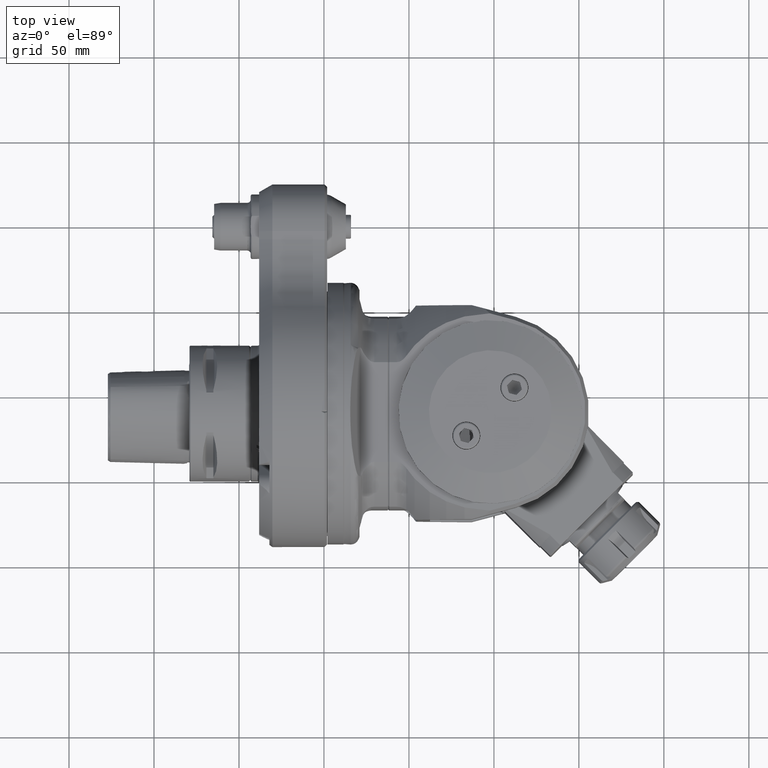
[diagram: clean part render]
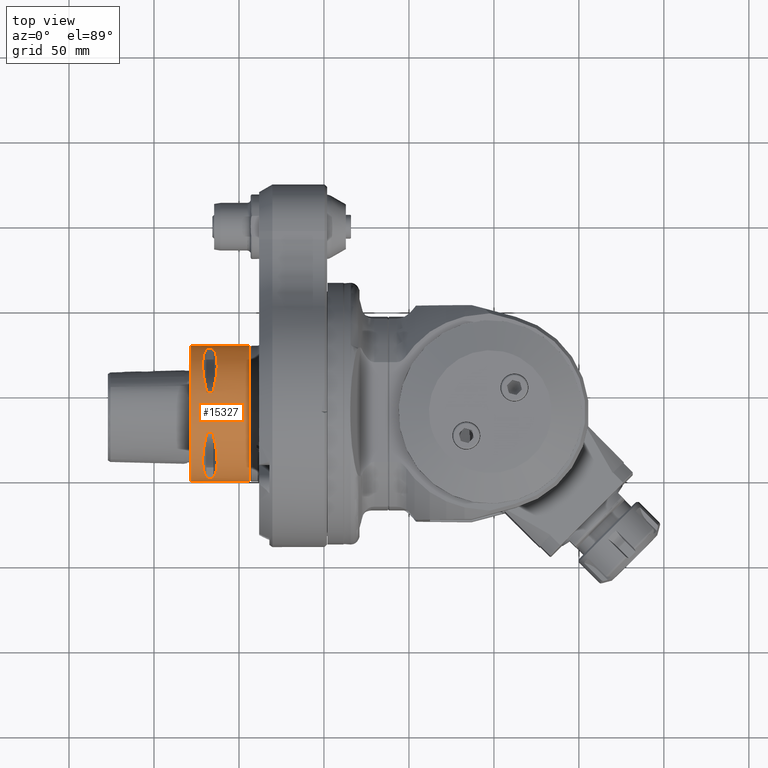
[diagram: same view with one face highlighted and labeled with its STEP entity id]
A machine part, top view. The second image highlights one B-rep face of the part: STEP entity #15327.
In plain terms, the highlighted cylindrical surface (bore or boss wall) has radius 40 mm, axis along (-1, 0, 0).
Its self-contained STEP definition (entity closure, byte-faithful):
#28=ELLIPSE('',#16628,46.1880215351714,40.);
#29=ELLIPSE('',#16631,46.1880215351714,40.);
#30=ELLIPSE('',#16633,46.1880215351714,40.);
#31=ELLIPSE('',#16636,46.1880215351714,40.);
#32=ELLIPSE('',#16640,46.1880215351714,40.);
#33=ELLIPSE('',#16643,46.1880215351714,40.);
#34=ELLIPSE('',#16646,46.1880215351714,40.);
#35=ELLIPSE('',#16649,46.1880215351714,40.);
#599=FACE_BOUND('',#2683,.T.);
#600=FACE_BOUND('',#2684,.T.);
#601=FACE_BOUND('',#2685,.T.);
#602=FACE_BOUND('',#2686,.T.);
#603=FACE_BOUND('',#2687,.T.);
#769=B_SPLINE_CURVE_WITH_KNOTS('',3,(#37405,#37406,#37407,#37408,#37409,
#37410,#37411,#37412,#37413,#37414,#37415,#37416,#37417,#37418,#37419,#37420,
#37421,#37422,#37423),.UNSPECIFIED.,.F.,.F.,(4,2,2,2,3,2,2,2,4),(-0.301403259154972,
-0.226052452324966,-0.15070164549496,-0.0753508227474801,0.,0.0753508227474802,
0.15070164549496,0.226052452324966,0.301403259154972),.UNSPECIFIED.);
#770=B_SPLINE_CURVE_WITH_KNOTS('',3,(#37424,#37425,#37426,#37427,#37428,
#37429,#37430,#37431,#37432,#37433,#37434,#37435,#37436,#37437,#37438,#37439,
#37440,#37441),.UNSPECIFIED.,.F.,.F.,(4,2,2,2,2,2,2,2,4),(0.301403259154972,
0.376754065984978,0.452104872814984,0.527455695562464,0.602806518309944,
0.678157341057424,0.753508163804904,0.82885897063491,0.904209777464916),
 .UNSPECIFIED.);
#1724=FACE_OUTER_BOUND('',#2682,.T.);
#2682=EDGE_LOOP('',(#11856,#11857,#11858,#11859,#11860));
#2683=EDGE_LOOP('',(#11861,#11862));
#2684=EDGE_LOOP('',(#11863,#11864,#11865,#11866,#11867,#11868,#11869,#11870));
#2685=EDGE_LOOP('',(#11871,#11872,#11873,#11874,#11875,#11876,#11877,#11878));
#2686=EDGE_LOOP('',(#11879,#11880,#11881,#11882,#11883,#11884,#11885,#11886));
#2687=EDGE_LOOP('',(#11887,#11888,#11889,#11890,#11891,#11892,#11893,#11894));
#3802=LINE('',#37402,#4845);
#3803=LINE('',#37444,#4846);
#3804=LINE('',#37452,#4847);
#3805=LINE('',#37464,#4848);
#3806=LINE('',#37472,#4849);
#3807=LINE('',#37482,#4850);
#3808=LINE('',#37489,#4851);
#3809=LINE('',#37492,#4852);
#3810=LINE('',#37500,#4853);
#4845=VECTOR('',#19429,40.);
#4846=VECTOR('',#19430,4.1);
#4847=VECTOR('',#19437,4.1);
#4848=VECTOR('',#19448,4.1);
#4849=VECTOR('',#19455,4.1);
#4850=VECTOR('',#19464,4.1);
#4851=VECTOR('',#19471,4.1);
#4852=VECTOR('',#19472,4.1);
#4853=VECTOR('',#19479,4.1);
#5773=CIRCLE('',#16623,40.);
#5774=CIRCLE('',#16625,40.);
#5775=CIRCLE('',#16626,40.);
#5776=CIRCLE('',#16627,40.);
#5777=CIRCLE('',#16629,40.);
#5778=CIRCLE('',#16630,40.);
#5779=CIRCLE('',#16632,40.);
#5780=CIRCLE('',#16634,40.);
#5781=CIRCLE('',#16635,40.);
#5782=CIRCLE('',#16637,40.);
#5783=CIRCLE('',#16638,40.);
#5784=CIRCLE('',#16639,40.);
#5785=CIRCLE('',#16641,40.);
#5786=CIRCLE('',#16642,40.);
#5787=CIRCLE('',#16644,40.);
#5788=CIRCLE('',#16645,40.);
#5789=CIRCLE('',#16647,40.);
#5790=CIRCLE('',#16648,40.);
#5791=CIRCLE('',#16650,40.);
#6789=VERTEX_POINT('',#37394);
#6790=VERTEX_POINT('',#37398);
#6791=VERTEX_POINT('',#37399);
#6792=VERTEX_POINT('',#37403);
#6793=VERTEX_POINT('',#37404);
#6794=VERTEX_POINT('',#37442);
#6795=VERTEX_POINT('',#37443);
#6796=VERTEX_POINT('',#37445);
#6797=VERTEX_POINT('',#37447);
#6798=VERTEX_POINT('',#37449);
#6799=VERTEX_POINT('',#37451);
#6800=VERTEX_POINT('',#37453);
#6801=VERTEX_POINT('',#37455);
#6802=VERTEX_POINT('',#37458);
#6803=VERTEX_POINT('',#37459);
#6804=VERTEX_POINT('',#37461);
#6805=VERTEX_POINT('',#37463);
#6806=VERTEX_POINT('',#37465);
#6807=VERTEX_POINT('',#37467);
#6808=VERTEX_POINT('',#37469);
#6809=VERTEX_POINT('',#37471);
#6810=VERTEX_POINT('',#37474);
#6811=VERTEX_POINT('',#37475);
#6812=VERTEX_POINT('',#37477);
#6813=VERTEX_POINT('',#37479);
#6814=VERTEX_POINT('',#37481);
#6815=VERTEX_POINT('',#37483);
#6816=VERTEX_POINT('',#37485);
#6817=VERTEX_POINT('',#37487);
#6818=VERTEX_POINT('',#37490);
#6819=VERTEX_POINT('',#37491);
#6820=VERTEX_POINT('',#37493);
#6821=VERTEX_POINT('',#37495);
#6822=VERTEX_POINT('',#37497);
#6823=VERTEX_POINT('',#37499);
#6824=VERTEX_POINT('',#37501);
#6825=VERTEX_POINT('',#37503);
#8635=EDGE_CURVE('',#6789,#6789,#5773,.T.);
#8637=EDGE_CURVE('',#6790,#6791,#5774,.T.);
#8638=EDGE_CURVE('',#6791,#6790,#5775,.T.);
#8639=EDGE_CURVE('',#6791,#6789,#3802,.T.);
#8640=EDGE_CURVE('',#6792,#6793,#769,.T.);
#8641=EDGE_CURVE('',#6793,#6792,#770,.T.);
#8642=EDGE_CURVE('',#6794,#6795,#3803,.T.);
#8643=EDGE_CURVE('',#6796,#6795,#5776,.T.);
#8644=EDGE_CURVE('',#6797,#6796,#28,.T.);
#8645=EDGE_CURVE('',#6798,#6797,#5777,.T.);
#8646=EDGE_CURVE('',#6798,#6799,#3804,.T.);
#8647=EDGE_CURVE('',#6800,#6799,#5778,.T.);
#8648=EDGE_CURVE('',#6801,#6800,#29,.T.);
#8649=EDGE_CURVE('',#6794,#6801,#5779,.T.);
#8650=EDGE_CURVE('',#6802,#6803,#30,.T.);
#8651=EDGE_CURVE('',#6804,#6802,#5780,.T.);
#8652=EDGE_CURVE('',#6804,#6805,#3805,.T.);
#8653=EDGE_CURVE('',#6806,#6805,#5781,.T.);
#8654=EDGE_CURVE('',#6807,#6806,#31,.T.);
#8655=EDGE_CURVE('',#6808,#6807,#5782,.T.);
#8656=EDGE_CURVE('',#6808,#6809,#3806,.T.);
#8657=EDGE_CURVE('',#6803,#6809,#5783,.T.);
#8658=EDGE_CURVE('',#6810,#6811,#5784,.T.);
#8659=EDGE_CURVE('',#6812,#6810,#32,.T.);
#8660=EDGE_CURVE('',#6813,#6812,#5785,.T.);
#8661=EDGE_CURVE('',#6813,#6814,#3807,.T.);
#8662=EDGE_CURVE('',#6815,#6814,#5786,.T.);
#8663=EDGE_CURVE('',#6816,#6815,#33,.T.);
#8664=EDGE_CURVE('',#6817,#6816,#5787,.T.);
#8665=EDGE_CURVE('',#6817,#6811,#3808,.T.);
#8666=EDGE_CURVE('',#6818,#6819,#3809,.T.);
#8667=EDGE_CURVE('',#6820,#6819,#5788,.T.);
#8668=EDGE_CURVE('',#6821,#6820,#34,.T.);
#8669=EDGE_CURVE('',#6822,#6821,#5789,.T.);
#8670=EDGE_CURVE('',#6822,#6823,#3810,.T.);
#8671=EDGE_CURVE('',#6824,#6823,#5790,.T.);
#8672=EDGE_CURVE('',#6825,#6824,#35,.T.);
#8673=EDGE_CURVE('',#6818,#6825,#5791,.T.);
#11856=ORIENTED_EDGE('',*,*,#8637,.F.);
#11857=ORIENTED_EDGE('',*,*,#8638,.F.);
#11858=ORIENTED_EDGE('',*,*,#8639,.T.);
#11859=ORIENTED_EDGE('',*,*,#8635,.F.);
#11860=ORIENTED_EDGE('',*,*,#8639,.F.);
#11861=ORIENTED_EDGE('',*,*,#8640,.T.);
#11862=ORIENTED_EDGE('',*,*,#8641,.T.);
#11863=ORIENTED_EDGE('',*,*,#8642,.T.);
#11864=ORIENTED_EDGE('',*,*,#8643,.F.);
#11865=ORIENTED_EDGE('',*,*,#8644,.F.);
#11866=ORIENTED_EDGE('',*,*,#8645,.F.);
#11867=ORIENTED_EDGE('',*,*,#8646,.T.);
#11868=ORIENTED_EDGE('',*,*,#8647,.F.);
#11869=ORIENTED_EDGE('',*,*,#8648,.F.);
#11870=ORIENTED_EDGE('',*,*,#8649,.F.);
#11871=ORIENTED_EDGE('',*,*,#8650,.F.);
#11872=ORIENTED_EDGE('',*,*,#8651,.F.);
#11873=ORIENTED_EDGE('',*,*,#8652,.T.);
#11874=ORIENTED_EDGE('',*,*,#8653,.F.);
#11875=ORIENTED_EDGE('',*,*,#8654,.F.);
#11876=ORIENTED_EDGE('',*,*,#8655,.F.);
#11877=ORIENTED_EDGE('',*,*,#8656,.T.);
#11878=ORIENTED_EDGE('',*,*,#8657,.F.);
#11879=ORIENTED_EDGE('',*,*,#8658,.F.);
#11880=ORIENTED_EDGE('',*,*,#8659,.F.);
#11881=ORIENTED_EDGE('',*,*,#8660,.F.);
#11882=ORIENTED_EDGE('',*,*,#8661,.T.);
#11883=ORIENTED_EDGE('',*,*,#8662,.F.);
#11884=ORIENTED_EDGE('',*,*,#8663,.F.);
#11885=ORIENTED_EDGE('',*,*,#8664,.F.);
#11886=ORIENTED_EDGE('',*,*,#8665,.T.);
#11887=ORIENTED_EDGE('',*,*,#8666,.T.);
#11888=ORIENTED_EDGE('',*,*,#8667,.F.);
#11889=ORIENTED_EDGE('',*,*,#8668,.F.);
#11890=ORIENTED_EDGE('',*,*,#8669,.F.);
#11891=ORIENTED_EDGE('',*,*,#8670,.T.);
#11892=ORIENTED_EDGE('',*,*,#8671,.F.);
#11893=ORIENTED_EDGE('',*,*,#8672,.F.);
#11894=ORIENTED_EDGE('',*,*,#8673,.F.);
#14871=CYLINDRICAL_SURFACE('',#16624,40.);
#15327=ADVANCED_FACE('',(#1724,#599,#600,#601,#602,#603),#14871,.T.);
#16623=AXIS2_PLACEMENT_3D('',#37395,#19420,#19421);
#16624=AXIS2_PLACEMENT_3D('',#37397,#19423,#19424);
#16625=AXIS2_PLACEMENT_3D('',#37400,#19425,#19426);
#16626=AXIS2_PLACEMENT_3D('',#37401,#19427,#19428);
#16627=AXIS2_PLACEMENT_3D('',#37446,#19431,#19432);
#16628=AXIS2_PLACEMENT_3D('',#37448,#19433,#19434);
#16629=AXIS2_PLACEMENT_3D('',#37450,#19435,#19436);
#16630=AXIS2_PLACEMENT_3D('',#37454,#19438,#19439);
#16631=AXIS2_PLACEMENT_3D('',#37456,#19440,#19441);
#16632=AXIS2_PLACEMENT_3D('',#37457,#19442,#19443);
#16633=AXIS2_PLACEMENT_3D('',#37460,#19444,#19445);
#16634=AXIS2_PLACEMENT_3D('',#37462,#19446,#19447);
#16635=AXIS2_PLACEMENT_3D('',#37466,#19449,#19450);
#16636=AXIS2_PLACEMENT_3D('',#37468,#19451,#19452);
#16637=AXIS2_PLACEMENT_3D('',#37470,#19453,#19454);
#16638=AXIS2_PLACEMENT_3D('',#37473,#19456,#19457);
#16639=AXIS2_PLACEMENT_3D('',#37476,#19458,#19459);
#16640=AXIS2_PLACEMENT_3D('',#37478,#19460,#19461);
#16641=AXIS2_PLACEMENT_3D('',#37480,#19462,#19463);
#16642=AXIS2_PLACEMENT_3D('',#37484,#19465,#19466);
#16643=AXIS2_PLACEMENT_3D('',#37486,#19467,#19468);
#16644=AXIS2_PLACEMENT_3D('',#37488,#19469,#19470);
#16645=AXIS2_PLACEMENT_3D('',#37494,#19473,#19474);
#16646=AXIS2_PLACEMENT_3D('',#37496,#19475,#19476);
#16647=AXIS2_PLACEMENT_3D('',#37498,#19477,#19478);
#16648=AXIS2_PLACEMENT_3D('',#37502,#19480,#19481);
#16649=AXIS2_PLACEMENT_3D('',#37504,#19482,#19483);
#16650=AXIS2_PLACEMENT_3D('',#37505,#19484,#19485);
#19420=DIRECTION('center_axis',(1.,0.,0.));
#19421=DIRECTION('ref_axis',(0.,1.,0.));
#19423=DIRECTION('center_axis',(-1.,0.,0.));
#19424=DIRECTION('ref_axis',(0.,1.,0.));
#19425=DIRECTION('center_axis',(-1.,0.,0.));
#19426=DIRECTION('ref_axis',(0.,1.,0.));
#19427=DIRECTION('center_axis',(-1.,0.,0.));
#19428=DIRECTION('ref_axis',(0.,1.,0.));
#19429=DIRECTION('',(1.,0.,0.));
#19430=DIRECTION('',(1.,0.,0.));
#19431=DIRECTION('center_axis',(-1.,0.,0.));
#19432=DIRECTION('ref_axis',(0.,-0.330929327763913,0.943655540981837));
#19433=DIRECTION('center_axis',(-0.866025403784413,-0.353553390593305,0.353553390593305));
#19434=DIRECTION('ref_axis',(-0.500000000000045,0.612372435695776,-0.612372435695776));
#19435=DIRECTION('center_axis',(-1.,0.,0.));
#19436=DIRECTION('ref_axis',(0.,-0.955802835676984,0.294008400070195));
#19437=DIRECTION('',(-1.,0.,0.));
#19438=DIRECTION('center_axis',(1.,0.,0.));
#19439=DIRECTION('ref_axis',(0.,-0.943655540981837,0.330929327763913));
#19440=DIRECTION('center_axis',(0.866025403784413,-0.353553390593305,0.353553390593305));
#19441=DIRECTION('ref_axis',(0.500000000000045,0.612372435695776,-0.612372435695776));
#19442=DIRECTION('center_axis',(1.,0.,0.));
#19443=DIRECTION('ref_axis',(0.,-0.294008400070195,0.955802835676984));
#19444=DIRECTION('center_axis',(-0.866025403784413,0.353553390593305,0.353553390593305));
#19445=DIRECTION('ref_axis',(0.500000000000045,0.612372435695776,0.612372435695776));
#19446=DIRECTION('center_axis',(-1.,0.,0.));
#19447=DIRECTION('ref_axis',(0.,0.294008400070195,0.955802835676984));
#19448=DIRECTION('',(-1.,0.,0.));
#19449=DIRECTION('center_axis',(1.,0.,0.));
#19450=DIRECTION('ref_axis',(0.,0.330929327763913,0.943655540981837));
#19451=DIRECTION('center_axis',(0.866025403784413,0.353553390593305,0.353553390593305));
#19452=DIRECTION('ref_axis',(-0.500000000000045,0.612372435695776,0.612372435695776));
#19453=DIRECTION('center_axis',(1.,0.,0.));
#19454=DIRECTION('ref_axis',(0.,0.955802835676984,0.294008400070195));
#19455=DIRECTION('',(1.,0.,0.));
#19456=DIRECTION('center_axis',(-1.,0.,0.));
#19457=DIRECTION('ref_axis',(0.,0.943655540981837,0.330929327763913));
#19458=DIRECTION('center_axis',(-1.,0.,0.));
#19459=DIRECTION('ref_axis',(0.,0.330929327763913,-0.943655540981837));
#19460=DIRECTION('center_axis',(-0.866025403784413,0.353553390593305,-0.353553390593305));
#19461=DIRECTION('ref_axis',(0.500000000000045,0.612372435695776,-0.612372435695776));
#19462=DIRECTION('center_axis',(-1.,0.,0.));
#19463=DIRECTION('ref_axis',(0.,0.955802835676984,-0.294008400070195));
#19464=DIRECTION('',(-1.,0.,0.));
#19465=DIRECTION('center_axis',(1.,0.,0.));
#19466=DIRECTION('ref_axis',(0.,0.943655540981837,-0.330929327763913));
#19467=DIRECTION('center_axis',(0.866025403784413,0.353553390593305,-0.353553390593305));
#19468=DIRECTION('ref_axis',(-0.500000000000045,0.612372435695776,-0.612372435695776));
#19469=DIRECTION('center_axis',(1.,0.,0.));
#19470=DIRECTION('ref_axis',(0.,0.294008400070195,-0.955802835676984));
#19471=DIRECTION('',(1.,0.,0.));
#19472=DIRECTION('',(1.,0.,0.));
#19473=DIRECTION('center_axis',(-1.,0.,0.));
#19474=DIRECTION('ref_axis',(0.,-0.943655540981837,-0.330929327763913));
#19475=DIRECTION('center_axis',(-0.866025403784413,-0.353553390593305,-0.353553390593305));
#19476=DIRECTION('ref_axis',(-0.500000000000045,0.612372435695776,0.612372435695776));
#19477=DIRECTION('center_axis',(-1.,0.,0.));
#19478=DIRECTION('ref_axis',(0.,-0.294008400070195,-0.955802835676984));
#19479=DIRECTION('',(-1.,0.,0.));
#19480=DIRECTION('center_axis',(1.,0.,0.));
#19481=DIRECTION('ref_axis',(0.,-0.330929327763913,-0.943655540981837));
#19482=DIRECTION('center_axis',(0.866025403784413,-0.353553390593305,-0.353553390593305));
#19483=DIRECTION('ref_axis',(0.500000000000045,0.612372435695776,0.612372435695776));
#19484=DIRECTION('center_axis',(1.,0.,0.));
#19485=DIRECTION('ref_axis',(0.,-0.955802835676984,-0.294008400070195));
#37394=CARTESIAN_POINT('',(31.,-40.,0.));
#37395=CARTESIAN_POINT('Origin',(31.,0.,0.));
#37397=CARTESIAN_POINT('Origin',(-4.000000000003,0.,0.));
#37398=CARTESIAN_POINT('',(-3.500000000003,40.,0.));
#37399=CARTESIAN_POINT('',(-3.500000000003,-40.,4.89858719658941E-15));
#37400=CARTESIAN_POINT('Origin',(-3.500000000003,0.,0.));
#37401=CARTESIAN_POINT('Origin',(-3.500000000003,0.,0.));
#37402=CARTESIAN_POINT('',(-4.000000000003,-40.,4.89858719658941E-15));
#37403=CARTESIAN_POINT('',(5.999999999997,40.,0.));
#37404=CARTESIAN_POINT('',(9.999999999997,40.,-2.44929359829471E-16));
#37405=CARTESIAN_POINT('Ctrl Pts',(5.999999999997,40.,4.85722573273506E-16));
#37406=CARTESIAN_POINT('Ctrl Pts',(5.999999999997,40.,-0.251169356100019));
#37407=CARTESIAN_POINT('Ctrl Pts',(6.05020482348075,39.9973912547077,-0.519051817553323));
#37408=CARTESIAN_POINT('Ctrl Pts',(6.25432519584563,39.9879605190891,-1.01179814961669));
#37409=CARTESIAN_POINT('Ctrl Pts',(6.40823842720574,39.9812733796968,-1.23666555195493));
#37410=CARTESIAN_POINT('Ctrl Pts',(6.76333448554818,39.9687109842031,-1.59176161029737));
#37411=CARTESIAN_POINT('Ctrl Pts',(6.98820187076061,39.9620201940857,-1.74567481365527));
#37412=CARTESIAN_POINT('Ctrl Pts',(7.48094814885337,39.9525811104471,-1.9497951615401));
#37413=CARTESIAN_POINT('Ctrl Pts',(7.74883059083873,39.9499687108764,-2.));
#37414=CARTESIAN_POINT('Ctrl Pts',(7.999999999997,39.9499687108764,-2.));
#37415=CARTESIAN_POINT('Ctrl Pts',(8.25116940915527,39.9499687108764,-2.));
#37416=CARTESIAN_POINT('Ctrl Pts',(8.51905185114063,39.9525811104471,-1.9497951615401));
#37417=CARTESIAN_POINT('Ctrl Pts',(9.01179812923339,39.9620201940857,-1.74567481365527));
#37418=CARTESIAN_POINT('Ctrl Pts',(9.23666551444582,39.9687109842031,-1.59176161029737));
#37419=CARTESIAN_POINT('Ctrl Pts',(9.59176157278826,39.9812733796968,-1.23666555195493));
#37420=CARTESIAN_POINT('Ctrl Pts',(9.74567480414837,39.9879605190891,-1.01179814961669));
#37421=CARTESIAN_POINT('Ctrl Pts',(9.94979517651325,39.9973912547077,-0.519051817553323));
#37422=CARTESIAN_POINT('Ctrl Pts',(9.999999999997,40.,-0.25116935610002));
#37423=CARTESIAN_POINT('Ctrl Pts',(9.999999999997,40.,-2.08166817117217E-16));
#37424=CARTESIAN_POINT('Ctrl Pts',(9.999999999997,40.,-2.77555756156289E-16));
#37425=CARTESIAN_POINT('Ctrl Pts',(9.999999999997,40.,0.251169356100019));
#37426=CARTESIAN_POINT('Ctrl Pts',(9.94979517651326,39.9973912547077,0.519051817553322));
#37427=CARTESIAN_POINT('Ctrl Pts',(9.74567480414837,39.9879605190891,1.01179814961669));
#37428=CARTESIAN_POINT('Ctrl Pts',(9.59176157278826,39.9812733796968,1.23666555195493));
#37429=CARTESIAN_POINT('Ctrl Pts',(9.23666551444582,39.9687109842031,1.59176161029737));
#37430=CARTESIAN_POINT('Ctrl Pts',(9.01179812923339,39.9620201940857,1.74567481365527));
#37431=CARTESIAN_POINT('Ctrl Pts',(8.51905185114063,39.9525811104471,1.9497951615401));
#37432=CARTESIAN_POINT('Ctrl Pts',(8.25116940915527,39.9499687108764,2.));
#37433=CARTESIAN_POINT('Ctrl Pts',(7.74883059083873,39.9499687108764,2.));
#37434=CARTESIAN_POINT('Ctrl Pts',(7.48094814885337,39.9525811104471,1.9497951615401));
#37435=CARTESIAN_POINT('Ctrl Pts',(6.98820187076061,39.9620201940857,1.74567481365527));
#37436=CARTESIAN_POINT('Ctrl Pts',(6.76333448554819,39.9687109842031,1.59176161029737));
#37437=CARTESIAN_POINT('Ctrl Pts',(6.40823842720574,39.9812733796968,1.23666555195493));
#37438=CARTESIAN_POINT('Ctrl Pts',(6.25432519584563,39.9879605190891,1.01179814961669));
#37439=CARTESIAN_POINT('Ctrl Pts',(6.05020482348075,39.9973912547077,0.519051817553324));
#37440=CARTESIAN_POINT('Ctrl Pts',(5.999999999997,40.,0.25116935610002));
#37441=CARTESIAN_POINT('Ctrl Pts',(5.999999999997,40.,4.16333634234434E-16));
#37442=CARTESIAN_POINT('',(5.949999999997,-11.76033600281,38.23211342708));
#37443=CARTESIAN_POINT('',(10.05,-11.76033600281,38.23211342708));
#37444=CARTESIAN_POINT('',(5.949999999997,-11.76033600281,38.23211342708));
#37445=CARTESIAN_POINT('',(10.05,-13.23717311056,37.74622163927));
#37446=CARTESIAN_POINT('Origin',(10.05,0.,0.));
#37447=CARTESIAN_POINT('',(10.05,-37.74622163927,13.23717311056));
#37448=CARTESIAN_POINT('Origin',(-10.7638837486689,0.,0.));
#37449=CARTESIAN_POINT('',(10.05,-38.23211342708,11.76033600281));
#37450=CARTESIAN_POINT('Origin',(10.05,0.,0.));
#37451=CARTESIAN_POINT('',(5.949999999997,-38.23211342708,11.76033600281));
#37452=CARTESIAN_POINT('',(10.05,-38.23211342708,11.76033600281));
#37453=CARTESIAN_POINT('',(5.949999999997,-37.74622163927,13.23717311056));
#37454=CARTESIAN_POINT('Origin',(5.949999999997,0.,0.));
#37455=CARTESIAN_POINT('',(5.949999999997,-13.23717311056,37.74622163927));
#37456=CARTESIAN_POINT('Origin',(26.7638837486616,0.,0.));
#37457=CARTESIAN_POINT('Origin',(5.949999999997,0.,0.));
#37458=CARTESIAN_POINT('',(10.05,13.23717311056,37.74622163927));
#37459=CARTESIAN_POINT('',(10.05,37.74622163927,13.23717311056));
#37460=CARTESIAN_POINT('Origin',(-10.7638837486649,0.,0.));
#37461=CARTESIAN_POINT('',(10.05,11.76033600281,38.23211342708));
#37462=CARTESIAN_POINT('Origin',(10.05,0.,0.));
#37463=CARTESIAN_POINT('',(5.949999999997,11.76033600281,38.23211342708));
#37464=CARTESIAN_POINT('',(10.05,11.76033600281,38.23211342708));
#37465=CARTESIAN_POINT('',(5.949999999997,13.23717311056,37.74622163927));
#37466=CARTESIAN_POINT('Origin',(5.949999999997,0.,0.));
#37467=CARTESIAN_POINT('',(5.949999999997,37.74622163927,13.23717311056));
#37468=CARTESIAN_POINT('Origin',(26.7638837486616,0.,0.));
#37469=CARTESIAN_POINT('',(5.949999999997,38.23211342708,11.76033600281));
#37470=CARTESIAN_POINT('Origin',(5.949999999997,0.,0.));
#37471=CARTESIAN_POINT('',(10.05,38.23211342708,11.76033600281));
#37472=CARTESIAN_POINT('',(5.949999999997,38.23211342708,11.76033600281));
#37473=CARTESIAN_POINT('Origin',(10.05,0.,0.));
#37474=CARTESIAN_POINT('',(10.05,13.23717311056,-37.74622163927));
#37475=CARTESIAN_POINT('',(10.05,11.76033600281,-38.23211342708));
#37476=CARTESIAN_POINT('Origin',(10.05,0.,0.));
#37477=CARTESIAN_POINT('',(10.05,37.74622163927,-13.23717311056));
#37478=CARTESIAN_POINT('Origin',(-10.7638837486656,0.,0.));
#37479=CARTESIAN_POINT('',(10.05,38.23211342708,-11.76033600281));
#37480=CARTESIAN_POINT('Origin',(10.05,0.,0.));
#37481=CARTESIAN_POINT('',(5.949999999997,38.23211342708,-11.76033600281));
#37482=CARTESIAN_POINT('',(10.05,38.23211342708,-11.76033600281));
#37483=CARTESIAN_POINT('',(5.949999999997,37.74622163927,-13.23717311056));
#37484=CARTESIAN_POINT('Origin',(5.949999999997,0.,0.));
#37485=CARTESIAN_POINT('',(5.949999999997,13.23717311056,-37.74622163927));
#37486=CARTESIAN_POINT('Origin',(26.7638837486659,0.,0.));
#37487=CARTESIAN_POINT('',(5.949999999997,11.76033600281,-38.23211342708));
#37488=CARTESIAN_POINT('Origin',(5.949999999997,0.,0.));
#37489=CARTESIAN_POINT('',(5.949999999997,11.76033600281,-38.23211342708));
#37490=CARTESIAN_POINT('',(5.949999999997,-38.23211342708,-11.76033600281));
#37491=CARTESIAN_POINT('',(10.05,-38.23211342708,-11.76033600281));
#37492=CARTESIAN_POINT('',(5.949999999997,-38.23211342708,-11.76033600281));
#37493=CARTESIAN_POINT('',(10.05,-37.74622163927,-13.23717311056));
#37494=CARTESIAN_POINT('Origin',(10.05,0.,0.));
#37495=CARTESIAN_POINT('',(10.05,-13.23717311056,-37.74622163927));
#37496=CARTESIAN_POINT('Origin',(-10.7638837486656,0.,0.));
#37497=CARTESIAN_POINT('',(10.05,-11.76033600281,-38.23211342708));
#37498=CARTESIAN_POINT('Origin',(10.05,0.,0.));
#37499=CARTESIAN_POINT('',(5.949999999997,-11.76033600281,-38.23211342708));
#37500=CARTESIAN_POINT('',(10.05,-11.76033600281,-38.23211342708));
#37501=CARTESIAN_POINT('',(5.949999999997,-13.23717311056,-37.74622163927));
#37502=CARTESIAN_POINT('Origin',(5.949999999997,0.,0.));
#37503=CARTESIAN_POINT('',(5.949999999997,-37.74622163927,-13.23717311056));
#37504=CARTESIAN_POINT('Origin',(26.7638837486619,0.,0.));
#37505=CARTESIAN_POINT('Origin',(5.949999999997,0.,0.));